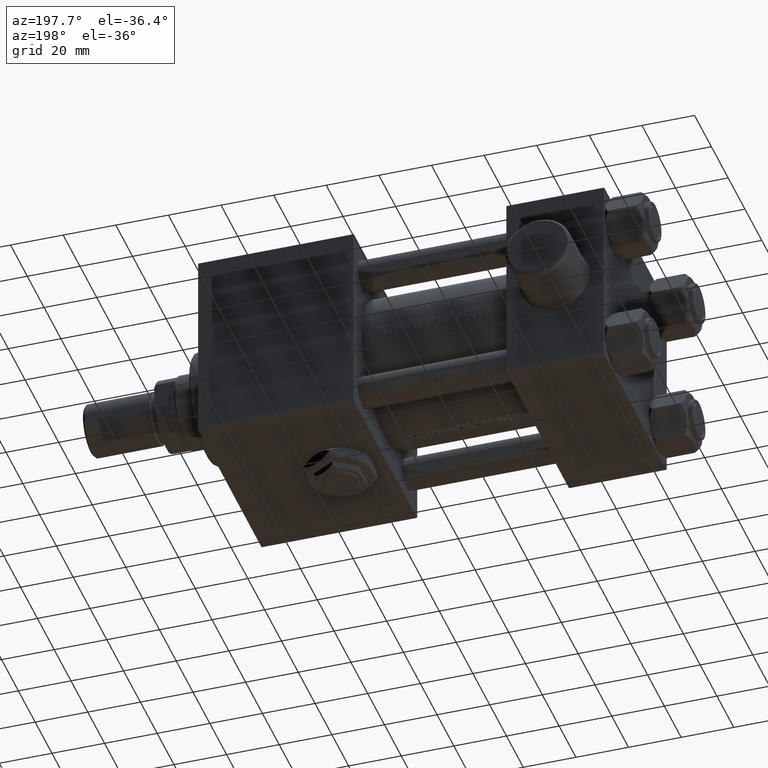
[diagram: clean part render]
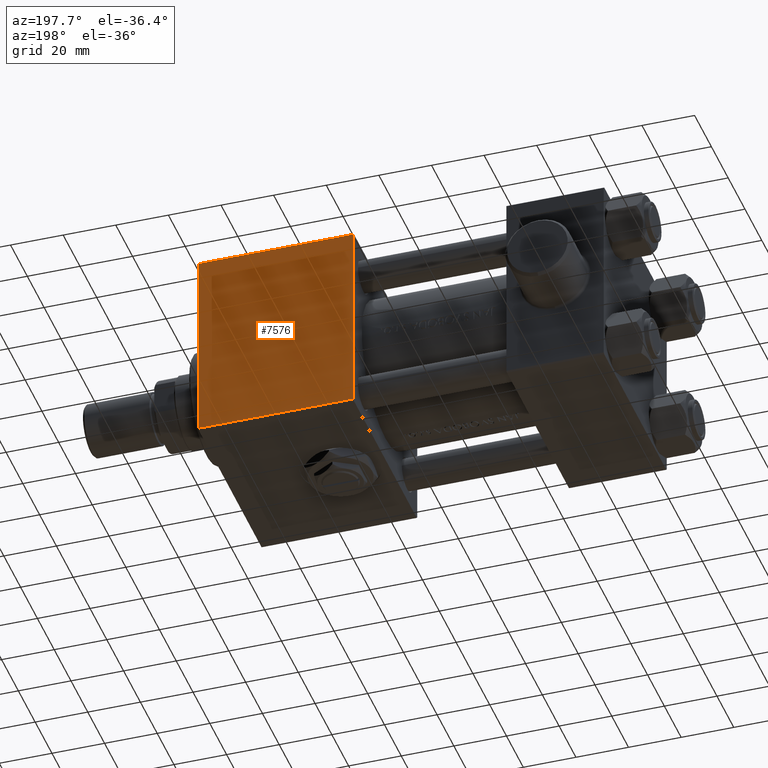
[diagram: same view with one face highlighted and labeled with its STEP entity id]
A machine part, auxiliary view. The second image highlights one B-rep face of the part: STEP entity #7576.
In plain terms, the highlighted planar face has unit normal (0, 1, 0).
Its self-contained STEP definition (entity closure, byte-faithful):
#714 = CARTESIAN_POINT ( 'NONE',  ( 154.0000000000000000, 38.00000000000000000, 37.50000000000000711 ) ) ;
#1497 = CARTESIAN_POINT ( 'NONE',  ( 95.00000000000000000, 38.00000000000000000, 37.00000000000006395 ) ) ;
#2431 = VECTOR ( 'NONE', #47159, 1000.000000000000000 ) ;
#2921 = VECTOR ( 'NONE', #42278, 1000.000000000000000 ) ;
#3338 = ORIENTED_EDGE ( 'NONE', *, *, #27980, .F. ) ;
#3543 = EDGE_CURVE ( 'NONE', #24748, #6312, #39248, .T. ) ;
#4937 = AXIS2_PLACEMENT_3D ( 'NONE', #714, #15834, #41382 ) ;
#6312 = VERTEX_POINT ( 'NONE', #24804 ) ;
#7575 = DIRECTION ( 'NONE',  ( 0.000000000000000000, 0.000000000000000000, -1.000000000000000000 ) ) ;
#7576 = ADVANCED_FACE ( 'NONE', ( #11640 ), #26243, .T. ) ;
#9123 = VERTEX_POINT ( 'NONE', #21399 ) ;
#9651 = VECTOR ( 'NONE', #7575, 1000.000000000000000 ) ;
#11640 = FACE_OUTER_BOUND ( 'NONE', #35469, .T. ) ;
#12025 = LINE ( 'NONE', #23660, #9651 ) ;
#15834 = DIRECTION ( 'NONE',  ( -0.000000000000000000, 1.000000000000000000, 0.000000000000000000 ) ) ;
#19215 = ORIENTED_EDGE ( 'NONE', *, *, #27231, .T. ) ;
#21399 = CARTESIAN_POINT ( 'NONE',  ( 154.0000000000000000, 38.00000000000000000, -37.00000000000000711 ) ) ;
#23660 = CARTESIAN_POINT ( 'NONE',  ( 154.0000000000000000, 38.00000000000000000, 37.50000000000000711 ) ) ;
#24748 = VERTEX_POINT ( 'NONE', #1497 ) ;
#24804 = CARTESIAN_POINT ( 'NONE',  ( 154.0000000000000000, 38.00000000000000000, 37.00000000000006395 ) ) ;
#25036 = VECTOR ( 'NONE', #45648, 1000.000000000000000 ) ;
#26243 = PLANE ( 'NONE',  #4937 ) ;
#26815 = CARTESIAN_POINT ( 'NONE',  ( 154.0000000000000000, 38.00000000000000000, -37.00000000000000711 ) ) ;
#27231 = EDGE_CURVE ( 'NONE', #9123, #33994, #30542, .T. ) ;
#27384 = CARTESIAN_POINT ( 'NONE',  ( 95.00000000000000000, 38.00000000000000000, 37.50000000000000711 ) ) ;
#27980 = EDGE_CURVE ( 'NONE', #24748, #33994, #46708, .T. ) ;
#29634 = ORIENTED_EDGE ( 'NONE', *, *, #43168, .T. ) ;
#30542 = LINE ( 'NONE', #26815, #25036 ) ;
#32377 = ORIENTED_EDGE ( 'NONE', *, *, #3543, .T. ) ;
#33994 = VERTEX_POINT ( 'NONE', #45705 ) ;
#35469 = EDGE_LOOP ( 'NONE', ( #3338, #32377, #29634, #19215 ) ) ;
#39248 = LINE ( 'NONE', #39733, #2431 ) ;
#39733 = CARTESIAN_POINT ( 'NONE',  ( 154.0000000000000000, 38.00000000000000000, 37.00000000000006395 ) ) ;
#41382 = DIRECTION ( 'NONE',  ( 0.000000000000000000, -0.000000000000000000, 1.000000000000000000 ) ) ;
#42278 = DIRECTION ( 'NONE',  ( 0.000000000000000000, 0.000000000000000000, -1.000000000000000000 ) ) ;
#43168 = EDGE_CURVE ( 'NONE', #6312, #9123, #12025, .T. ) ;
#45648 = DIRECTION ( 'NONE',  ( -1.000000000000000000, 0.000000000000000000, 0.000000000000000000 ) ) ;
#45705 = CARTESIAN_POINT ( 'NONE',  ( 95.00000000000000000, 38.00000000000000000, -37.00000000000000711 ) ) ;
#46708 = LINE ( 'NONE', #27384, #2921 ) ;
#47159 = DIRECTION ( 'NONE',  ( 1.000000000000000000, 0.000000000000000000, 0.000000000000000000 ) ) ;